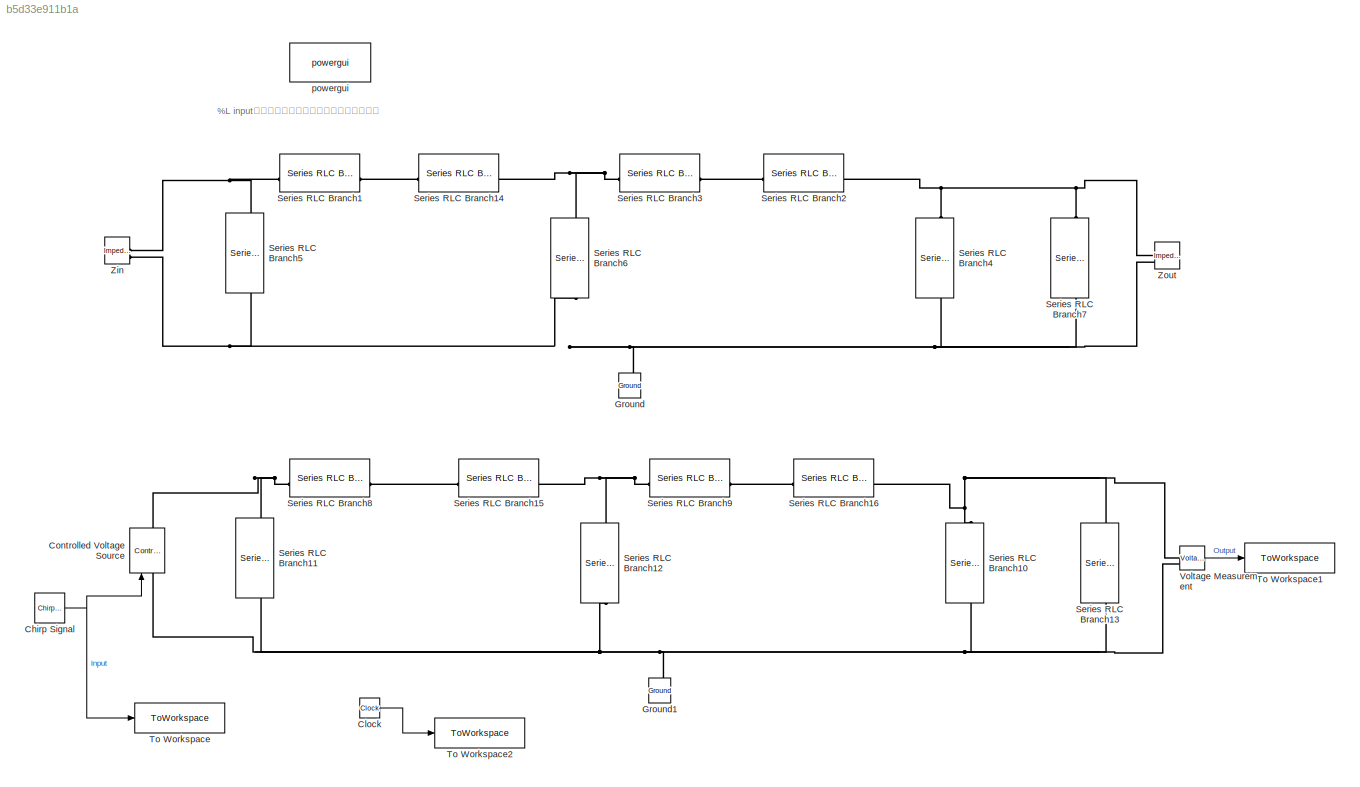
MODEL slx_b5d33e911b1a
KIND model
CONFIG AbsTol = auto
CONFIG EnableMultiTasking = off
CONFIG FixedStep = auto
CONFIG MaxStep = auto
CONFIG MinStep = auto
CONFIG RelTol = 1e-3
CONFIG SampleTimeConstraint = Unconstrained
CONFIG SolverName = ode23t
CONFIG StartTime = 0.0
CONFIG StopTime = SimTime
BLOCK [Reference] Chirp Signal  REF=simulink/Sources/Chirp Signal
  SourceBlock = simulink/Sources/Chirp Signal
  SourceType = chirp
BLOCK [Clock] Clock
BLOCK [Reference] Controlled Voltage Source  REF=spsControlledVoltageSourceLib/Controlled Voltage Source
  LibrarySourceBlock = sps_lib/Sources/Controlled Voltage Source
  SourceBlock = spsControlledVoltageSourceLib/Controlled Voltage Source
  SourceType = Controlled Voltage Source
BLOCK [Reference] Ground  REF=spsGroundLib/Ground
  LibrarySourceBlock = sps_lib/Utilities/Ground
  NameLocation = right
  SourceBlock = spsGroundLib/Ground
  SourceType = Ground
BLOCK [Reference] Ground1  REF=spsGroundLib/Ground
  LibrarySourceBlock = sps_lib/Utilities/Ground
  NameLocation = right
  SourceBlock = spsGroundLib/Ground
  SourceType = Ground
BLOCK [Reference] Series RLC Branch1  REF=spsSeriesRLCBranchLib/Series RLC Branch
  AttributesFormatString = L=%<Inductance> H
  LibrarySourceBlock = sps_lib/Passives/Series RLC Branch
  NameLocation = right
  SourceBlock = spsSeriesRLCBranchLib/Series RLC Branch
  SourceType = Series RLC Branch
BLOCK [Reference] Series RLC Branch10  REF=spsSeriesRLCBranchLib/Series RLC Branch
  AttributesFormatString = C=%<Capacitance> F
  LibrarySourceBlock = sps_lib/Passives/Series RLC Branch
  NameLocation = left
  SourceBlock = spsSeriesRLCBranchLib/Series RLC Branch
  SourceType = Series RLC Branch
BLOCK [Reference] Series RLC Branch11  REF=spsSeriesRLCBranchLib/Series RLC Branch
  AttributesFormatString = R=%<Resistance> Ohm
  LibrarySourceBlock = sps_lib/Passives/Series RLC Branch
  NameLocation = left
  SourceBlock = spsSeriesRLCBranchLib/Series RLC Branch
  SourceType = Series RLC Branch
BLOCK [Reference] Series RLC Branch12  REF=spsSeriesRLCBranchLib/Series RLC Branch
  AttributesFormatString = C=%<Capacitance> F
  LibrarySourceBlock = sps_lib/Passives/Series RLC Branch
  NameLocation = left
  SourceBlock = spsSeriesRLCBranchLib/Series RLC Branch
  SourceType = Series RLC Branch
BLOCK [Reference] Series RLC Branch13  REF=spsSeriesRLCBranchLib/Series RLC Branch
  AttributesFormatString = R=%<Resistance> Ohm
  LibrarySourceBlock = sps_lib/Passives/Series RLC Branch
  NameLocation = left
  SourceBlock = spsSeriesRLCBranchLib/Series RLC Branch
  SourceType = Series RLC Branch
BLOCK [Reference] Series RLC Branch14  REF=spsSeriesRLCBranchLib/Series RLC Branch
  AttributesFormatString = R=%<Resistance> Ohm
  LibrarySourceBlock = sps_lib/Passives/Series RLC Branch
  SourceBlock = spsSeriesRLCBranchLib/Series RLC Branch
  SourceType = Series RLC Branch
BLOCK [Reference] Series RLC Branch15  REF=spsSeriesRLCBranchLib/Series RLC Branch
  AttributesFormatString = R=%<Resistance> Ohm
  LibrarySourceBlock = sps_lib/Passives/Series RLC Branch
  SourceBlock = spsSeriesRLCBranchLib/Series RLC Branch
  SourceType = Series RLC Branch
BLOCK [Reference] Series RLC Branch16  REF=spsSeriesRLCBranchLib/Series RLC Branch
  AttributesFormatString = R=%<Resistance> Ohm
  LibrarySourceBlock = sps_lib/Passives/Series RLC Branch
  SourceBlock = spsSeriesRLCBranchLib/Series RLC Branch
  SourceType = Series RLC Branch
BLOCK [Reference] Series RLC Branch2  REF=spsSeriesRLCBranchLib/Series RLC Branch
  AttributesFormatString = R=%<Resistance> Ohm
  LibrarySourceBlock = sps_lib/Passives/Series RLC Branch
  SourceBlock = spsSeriesRLCBranchLib/Series RLC Branch
  SourceType = Series RLC Branch
BLOCK [Reference] Series RLC Branch3  REF=spsSeriesRLCBranchLib/Series RLC Branch
  AttributesFormatString = L=%<Inductance> H
  LibrarySourceBlock = sps_lib/Passives/Series RLC Branch
  NameLocation = right
  SourceBlock = spsSeriesRLCBranchLib/Series RLC Branch
  SourceType = Series RLC Branch
BLOCK [Reference] Series RLC Branch4  REF=spsSeriesRLCBranchLib/Series RLC Branch
  AttributesFormatString = C=%<Capacitance> F
  LibrarySourceBlock = sps_lib/Passives/Series RLC Branch
  NameLocation = left
  SourceBlock = spsSeriesRLCBranchLib/Series RLC Branch
  SourceType = Series RLC Branch
BLOCK [Reference] Series RLC Branch5  REF=spsSeriesRLCBranchLib/Series RLC Branch
  AttributesFormatString = R=%<Resistance> Ohm
  LibrarySourceBlock = sps_lib/Passives/Series RLC Branch
  NameLocation = left
  SourceBlock = spsSeriesRLCBranchLib/Series RLC Branch
  SourceType = Series RLC Branch
BLOCK [Reference] Series RLC Branch6  REF=spsSeriesRLCBranchLib/Series RLC Branch
  AttributesFormatString = C=%<Capacitance> F
  LibrarySourceBlock = sps_lib/Passives/Series RLC Branch
  NameLocation = left
  SourceBlock = spsSeriesRLCBranchLib/Series RLC Branch
  SourceType = Series RLC Branch
BLOCK [Reference] Series RLC Branch7  REF=spsSeriesRLCBranchLib/Series RLC Branch
  AttributesFormatString = R=%<Resistance> Ohm
  LibrarySourceBlock = sps_lib/Passives/Series RLC Branch
  NameLocation = left
  SourceBlock = spsSeriesRLCBranchLib/Series RLC Branch
  SourceType = Series RLC Branch
BLOCK [Reference] Series RLC Branch8  REF=spsSeriesRLCBranchLib/Series RLC Branch
  AttributesFormatString = L=%<Inductance> H
  LibrarySourceBlock = sps_lib/Passives/Series RLC Branch
  NameLocation = right
  SourceBlock = spsSeriesRLCBranchLib/Series RLC Branch
  SourceType = Series RLC Branch
BLOCK [Reference] Series RLC Branch9  REF=spsSeriesRLCBranchLib/Series RLC Branch
  AttributesFormatString = L=%<Inductance> H
  LibrarySourceBlock = sps_lib/Passives/Series RLC Branch
  NameLocation = right
  SourceBlock = spsSeriesRLCBranchLib/Series RLC Branch
  SourceType = Series RLC Branch
BLOCK [ToWorkspace] To Workspace
  FixptAsFi = on
  MaxDataPoints = inf
  SampleTime = SampleTime
  VariableName = Vin
BLOCK [ToWorkspace] To Workspace1
  FixptAsFi = on
  MaxDataPoints = inf
  SampleTime = SampleTime
  VariableName = Vout
BLOCK [ToWorkspace] To Workspace2
  FixptAsFi = on
  MaxDataPoints = inf
  SampleTime = SampleTime
  VariableName = tout
BLOCK [Reference] Voltage Measurement  REF=spsVoltageMeasurementLib/Voltage Measurement
  LibrarySourceBlock = sps_lib/Sensors and Measurements/Voltage Measurement
  SourceBlock = spsVoltageMeasurementLib/Voltage Measurement
  SourceType = Voltage Measurement
  UserDataPersistent = on
BLOCK [Reference] Zin  REF=spsImpedanceMeasurementLib/Impedance Measurement
  LibrarySourceBlock = sps_lib/Sensors and Measurements/Impedance Measurement
  NameLocation = top
  SourceBlock = spsImpedanceMeasurementLib/Impedance Measurement
  SourceType = Impedance Measurement
BLOCK [Reference] Zout  REF=spsImpedanceMeasurementLib/Impedance Measurement
  LibrarySourceBlock = sps_lib/Sensors and Measurements/Impedance Measurement
  SourceBlock = spsImpedanceMeasurementLib/Impedance Measurement
  SourceType = Impedance Measurement
BLOCK [Reference] powergui  REF=sps_lib/powergui
  LibrarySourceBlock = sps_lib/powergui
  Priority = 1
  SourceBlock = sps_lib/powergui
  SourceType = PSB option menu block
ANNOTATION (root): %L inputの場合は巨大なインピーダンスをつける
NET Chirp Signal:1 -> Controlled Voltage Source:1, To Workspace:1
LINE Clock:1 -> To Workspace2:1
LINE Voltage Measurement:1 -> To Workspace1:1
PNET net1: Controlled Voltage Source:LConn1 -- Ground1:LConn1 -- Series RLC Branch10:RConn1 -- Series RLC Branch11:RConn1 -- Series RLC Branch12:RConn1 -- Series RLC Branch13:RConn1 -- Voltage Measurement:LConn2
PNET net2: Controlled Voltage Source:RConn1 -- Series RLC Branch11:LConn1 -- Series RLC Branch8:LConn1
PNET net3: Ground:LConn1 -- Series RLC Branch4:RConn1 -- Series RLC Branch5:RConn1 -- Series RLC Branch6:RConn1 -- Series RLC Branch7:RConn1 -- Zin:LConn2 -- Zout:LConn2
PNET net4: Series RLC Branch10:LConn1 -- Series RLC Branch13:LConn1 -- Series RLC Branch16:RConn1 -- Voltage Measurement:LConn1
PNET net5: Series RLC Branch12:LConn1 -- Series RLC Branch15:RConn1 -- Series RLC Branch9:LConn1
PLINE Series RLC Branch14:LConn1 -- Series RLC Branch1:RConn1
PNET net6: Series RLC Branch14:RConn1 -- Series RLC Branch3:LConn1 -- Series RLC Branch6:LConn1
PLINE Series RLC Branch15:LConn1 -- Series RLC Branch8:RConn1
PLINE Series RLC Branch16:LConn1 -- Series RLC Branch9:RConn1
PNET net7: Series RLC Branch1:LConn1 -- Series RLC Branch5:LConn1 -- Zin:LConn1
PLINE Series RLC Branch2:LConn1 -- Series RLC Branch3:RConn1
PNET net8: Series RLC Branch2:RConn1 -- Series RLC Branch4:LConn1 -- Series RLC Branch7:LConn1 -- Zout:LConn1
note: NET lines group one-source signal fan-out (src -> all destinations, sorted); 1:1 wires keep LINE; PNET lines group multi-terminal physical nets as a canonical sorted terminal list (undirected conserving connections); 2-terminal nets keep the pairwise PLINE form
